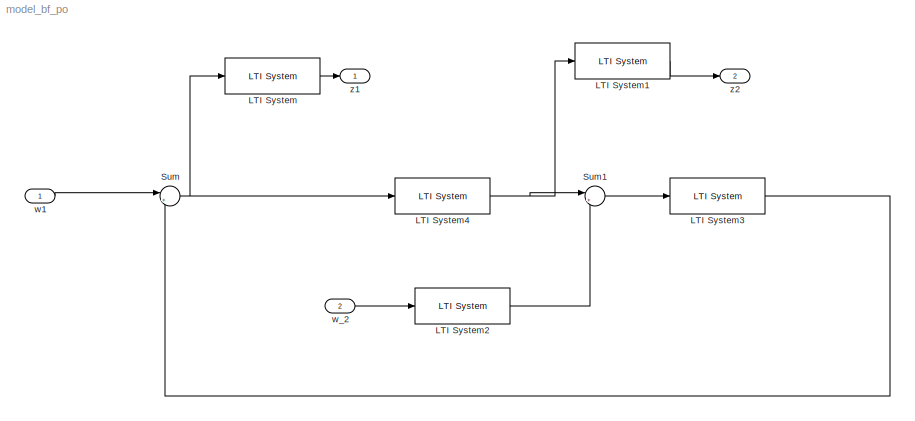
MODEL model_bf_po
KIND model
BLOCK [Reference] LTI System  REF=cstblocks/LTI System
  IC = 0
  Ports = [1, 1]
  ShowPortLabels = on
  SourceBlock = cstblocks/LTI System
  SourceType = LTI Block
  sys = W1
BLOCK [Reference] LTI System1  REF=cstblocks/LTI System
  IC = 0
  Ports = [1, 1]
  ShowPortLabels = on
  SourceBlock = cstblocks/LTI System
  SourceType = LTI Block
  sys = W2
BLOCK [Reference] LTI System2  REF=cstblocks/LTI System
  IC = 0
  Ports = [1, 1]
  ShowPortLabels = on
  SourceBlock = cstblocks/LTI System
  SourceType = LTI Block
  sys = Wp
BLOCK [Reference] LTI System3  REF=cstblocks/LTI System
  IC = 0
  Ports = [1, 1]
  ShowPortLabels = on
  SourceBlock = cstblocks/LTI System
  SourceType = LTI Block
  sys = sys_synt_ss
BLOCK [Reference] LTI System4  REF=cstblocks/LTI System
  IC = 0
  Ports = [1, 1]
  ShowPortLabels = on
  SourceBlock = cstblocks/LTI System
  SourceType = LTI Block
  sys = K_hinf_ss
BLOCK [Sum] Sum
  IconShape = round
  Inputs = |+-
  Ports = [2, 1]
BLOCK [Sum] Sum1
  IconShape = round
  Inputs = |+-
  Ports = [2, 1]
BLOCK [Inport] w1
  IconDisplay = Port number
BLOCK [Inport] w_2
  IconDisplay = Port number
  Port = 2
BLOCK [Outport] z1
  BusOutputAsStruct = off
  IconDisplay = Port number
BLOCK [Outport] z2
  BusOutputAsStruct = off
  IconDisplay = Port number
  Port = 2
LINE LTI System1:1 -> z2:1
LINE LTI System2:1 -> Sum1:2
LINE LTI System3:1 -> Sum:2
NET LTI System4:1 -> LTI System1:1, Sum1:1
LINE LTI System:1 -> z1:1
LINE Sum1:1 -> LTI System3:1
NET Sum:1 -> LTI System4:1, LTI System:1
LINE w1:1 -> Sum:1
LINE w_2:1 -> LTI System2:1
note: NET lines group one-source signal fan-out (src -> all destinations, sorted); 1:1 wires keep LINE
